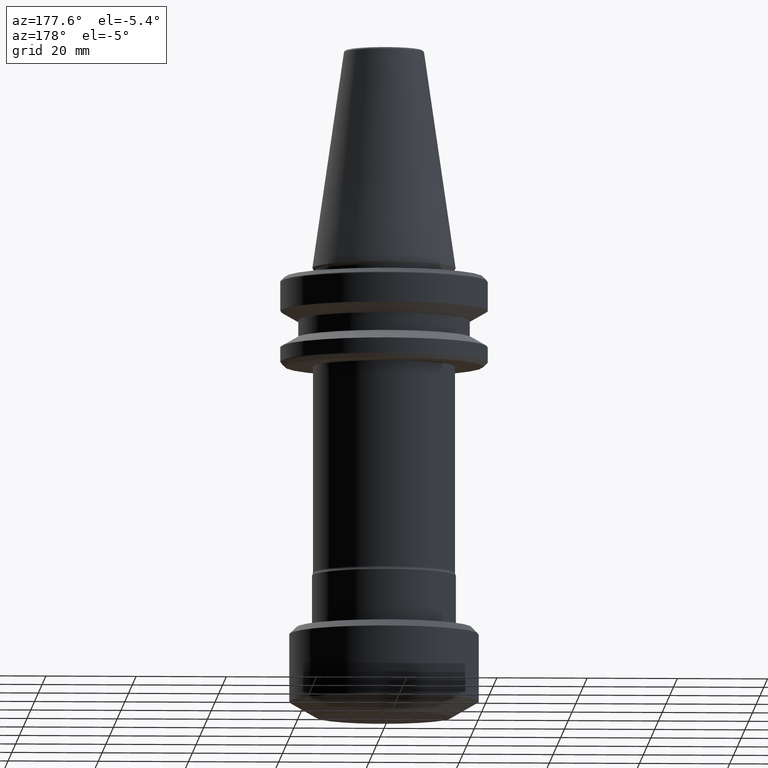
[diagram: clean part render]
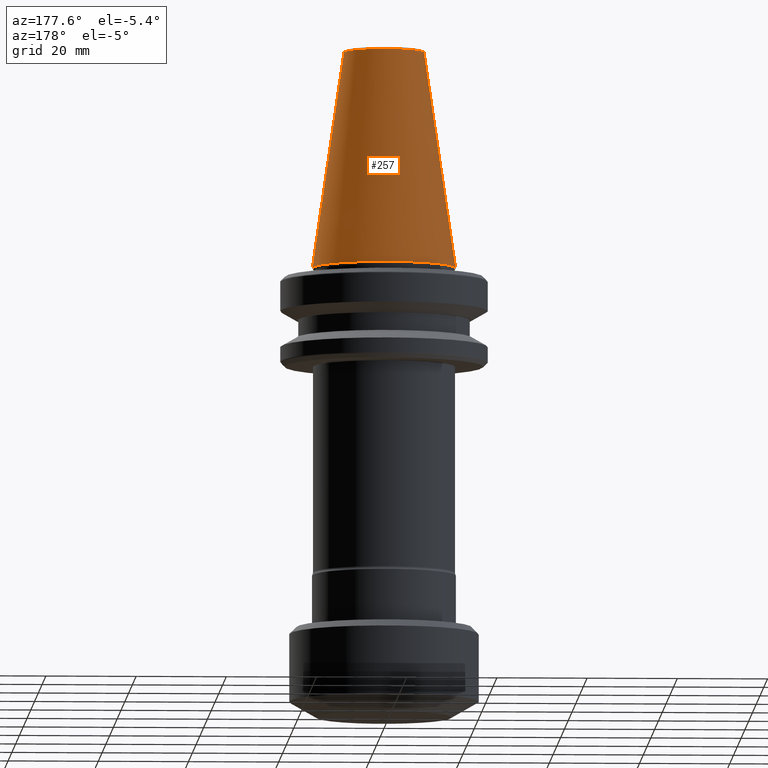
[diagram: same view with one face highlighted and labeled with its STEP entity id]
A machine part, auxiliary view. The second image highlights one B-rep face of the part: STEP entity #257.
In plain terms, the highlighted conical surface has half-angle 8.297 deg.
Its self-contained STEP definition (entity closure, byte-faithful):
#23 = EDGE_CURVE ( 'NONE', #947, #403, #288, .T. ) ;
#31 = CARTESIAN_POINT ( 'NONE',  ( 15.87500000000000000, 0.0000000000000000000, 0.0000000000000000000 ) ) ;
#88 = DIRECTION ( 'NONE',  ( -0.0000000000000000000, -0.0000000000000000000, 1.000000000000000000 ) ) ;
#118 = EDGE_CURVE ( 'NONE', #1371, #403, #773, .T. ) ;
#122 = DIRECTION ( 'NONE',  ( 1.000000000000000000, 0.0000000000000000000, 0.0000000000000000000 ) ) ;
#197 = DIRECTION ( 'NONE',  ( -0.1443082272673070200, 0.0000000000000000000, -0.9895327864921743500 ) ) ;
#222 = AXIS2_PLACEMENT_3D ( 'NONE', #812, #599, #973 ) ;
#257 = ADVANCED_FACE ( 'NONE', ( #675 ), #892, .T. ) ;
#288 = CIRCLE ( 'NONE', #626, 15.87500000000000000 ) ;
#298 = VECTOR ( 'NONE', #738, 1000.000000000000000 ) ;
#403 = VERTEX_POINT ( 'NONE', #1173 ) ;
#542 = ORIENTED_EDGE ( 'NONE', *, *, #23, .T. ) ;
#599 = DIRECTION ( 'NONE',  ( 0.0000000000000000000, 0.0000000000000000000, -1.000000000000000000 ) ) ;
#626 = AXIS2_PLACEMENT_3D ( 'NONE', #1241, #905, #122 ) ;
#669 = EDGE_CURVE ( 'NONE', #862, #947, #742, .T. ) ;
#675 = FACE_OUTER_BOUND ( 'NONE', #1091, .T. ) ;
#738 = DIRECTION ( 'NONE',  ( 0.1443082272673070200, 1.767266086135363300E-017, -0.9895327864921743500 ) ) ;
#740 = VECTOR ( 'NONE', #197, 1000.000000000000000 ) ;
#742 = LINE ( 'NONE', #1286, #298 ) ;
#766 = CARTESIAN_POINT ( 'NONE',  ( 0.0000000000000000000, 0.0000000000000000000, 47.97215411363367100 ) ) ;
#773 = LINE ( 'NONE', #1315, #740 ) ;
#787 = CARTESIAN_POINT ( 'NONE',  ( -8.878994801553478300, 0.0000000000000000000, 47.97215411363367100 ) ) ;
#800 = AXIS2_PLACEMENT_3D ( 'NONE', #766, #88, #876 ) ;
#812 = CARTESIAN_POINT ( 'NONE',  ( 0.0000000000000000000, 0.0000000000000000000, 47.97215411363367100 ) ) ;
#862 = VERTEX_POINT ( 'NONE', #1320 ) ;
#872 = CIRCLE ( 'NONE', #800, 8.878994801553478300 ) ;
#876 = DIRECTION ( 'NONE',  ( 1.000000000000000000, 0.0000000000000000000, 0.0000000000000000000 ) ) ;
#892 = CONICAL_SURFACE ( 'NONE', #222, 8.878994801553478300, 0.1448138465474190200 ) ;
#905 = DIRECTION ( 'NONE',  ( -0.0000000000000000000, -0.0000000000000000000, 1.000000000000000000 ) ) ;
#947 = VERTEX_POINT ( 'NONE', #31 ) ;
#973 = DIRECTION ( 'NONE',  ( -1.000000000000000000, 0.0000000000000000000, 0.0000000000000000000 ) ) ;
#1052 = EDGE_CURVE ( 'NONE', #862, #1371, #872, .T. ) ;
#1091 = EDGE_LOOP ( 'NONE', ( #1105, #1128, #542, #1258 ) ) ;
#1105 = ORIENTED_EDGE ( 'NONE', *, *, #1052, .F. ) ;
#1128 = ORIENTED_EDGE ( 'NONE', *, *, #669, .T. ) ;
#1173 = CARTESIAN_POINT ( 'NONE',  ( -15.87500000000000000, 1.944126793646423200E-015, 0.0000000000000000000 ) ) ;
#1241 = CARTESIAN_POINT ( 'NONE',  ( 0.0000000000000000000, 0.0000000000000000000, 0.0000000000000000000 ) ) ;
#1258 = ORIENTED_EDGE ( 'NONE', *, *, #118, .F. ) ;
#1286 = CARTESIAN_POINT ( 'NONE',  ( 8.878994801553478300, 1.087363256336845500E-015, 47.97215411363367100 ) ) ;
#1315 = CARTESIAN_POINT ( 'NONE',  ( -8.878994801553478300, 0.0000000000000000000, 47.97215411363367100 ) ) ;
#1320 = CARTESIAN_POINT ( 'NONE',  ( 8.878994801553478300, 1.515745024991634300E-015, 47.97215411363367100 ) ) ;
#1371 = VERTEX_POINT ( 'NONE', #787 ) ;